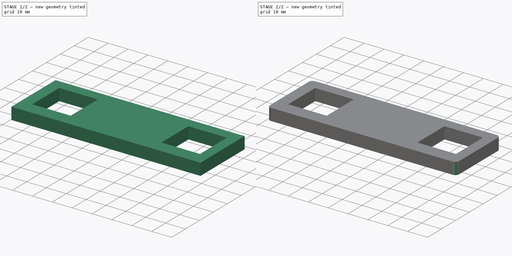
[diagram: build sequence overview — one tinted view per stage of 2, left to right]
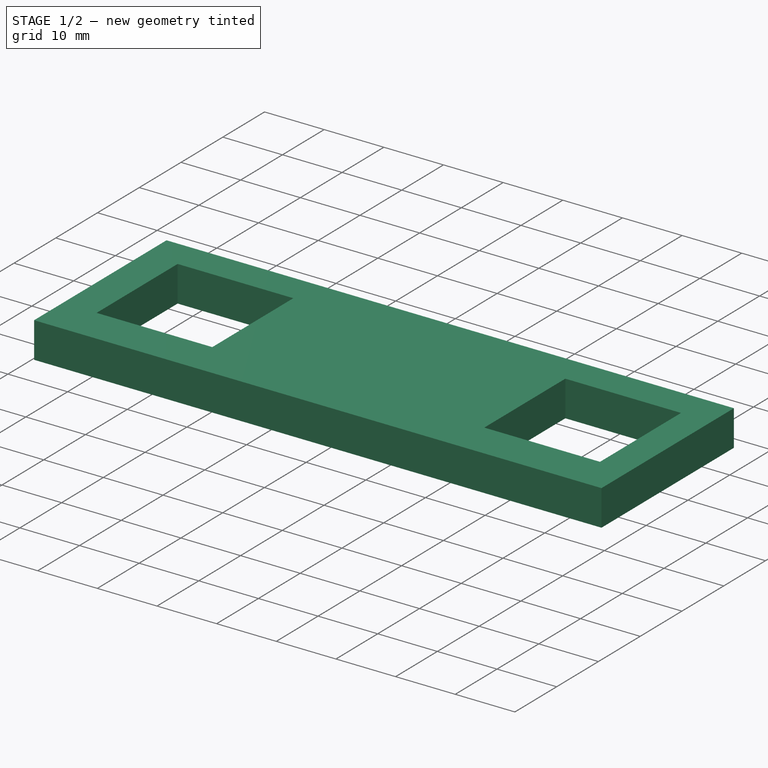
[diagram: stage 1 of 2 — iso view after this stage's code; geometry added in this stage tinted green]
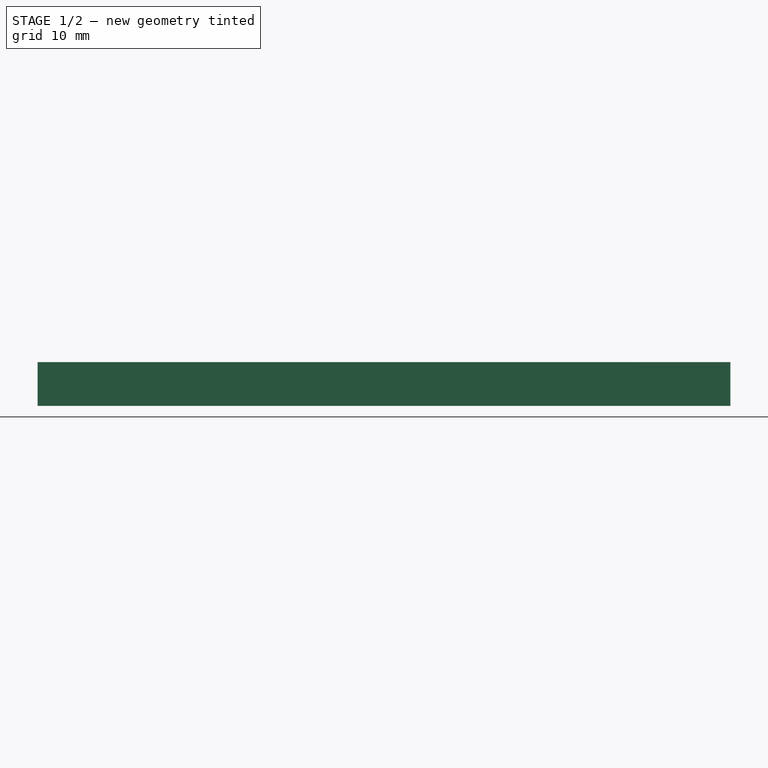
[diagram: stage 1 of 2 — front view after this stage's code; geometry added in this stage tinted green]
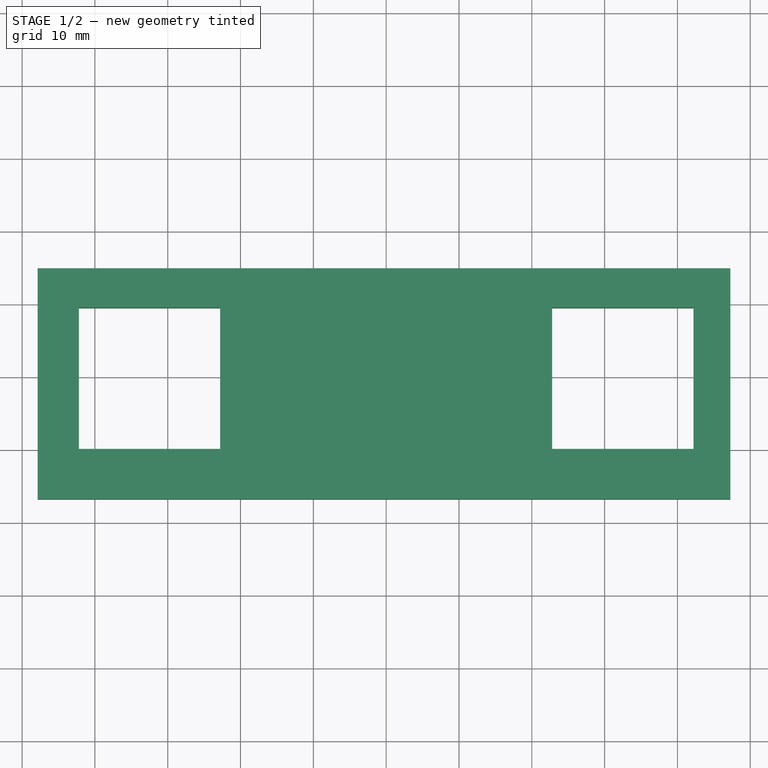
[diagram: stage 1 of 2 — top view after this stage's code; geometry added in this stage tinted green]
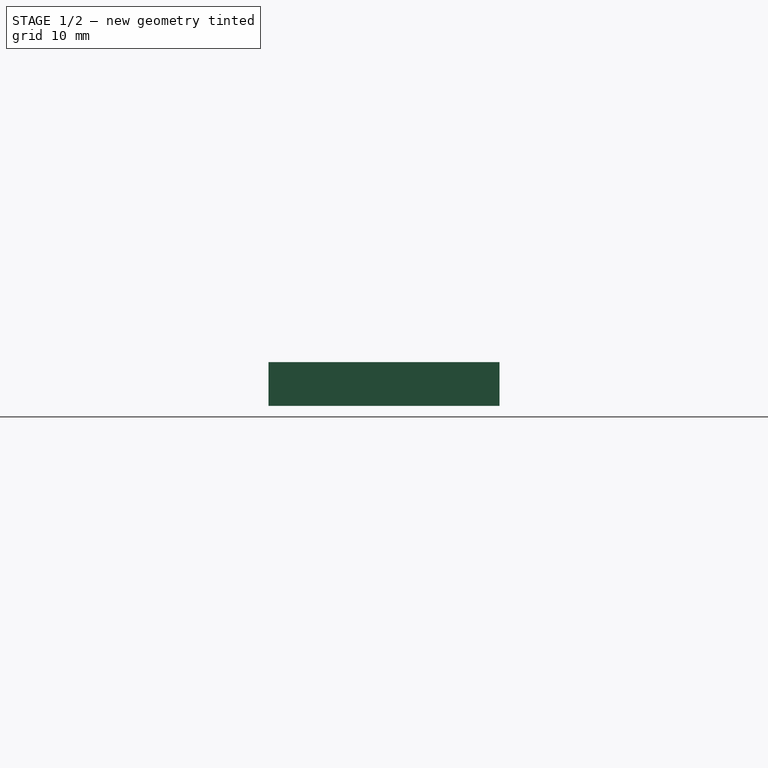
[diagram: stage 1 of 2 — right view after this stage's code; geometry added in this stage tinted green]
FCSTD DOCUMENT  (FreeCAD 0.19R24267 +99 (Git))
Label: 3d支架
License: All rights reserved
LicenseURL: http://en.wikipedia.org/wiki/All_rights_reserved
objects: Sketcher::SketchObject×1, PartDesign::Pad×1, PartDesign::Fillet×1, PartDesign::Body×1
note: 6 computed .brp shape members not serialized (recipe doc carries the construction recipe); baked Part::Feature solids carry a one-line shape summary decoded from their .brp

FEATURE [Sketcher::SketchObject] Sketch
  FullyConstrained = false
  MapMode = 5
  Support = -> [XY_Plane]
  sketch-geometry (14):
    g0: LineSegment StartX=-47.8605 StartY=14.9156 StartZ=0 EndX=47.266 EndY=14.9156 EndZ=0
    g1: LineSegment StartX=47.266 StartY=14.9156 StartZ=0 EndX=47.266 EndY=-16.7932 EndZ=0
    g2: LineSegment StartX=47.266 StartY=-16.7932 StartZ=0 EndX=-47.8605 EndY=-16.7932 EndZ=0
    g3: LineSegment StartX=-47.8605 StartY=-16.7932 StartZ=0 EndX=-47.8605 EndY=14.9156 EndZ=0
    g4: LineSegment StartX=-42.2 StartY=9.48964 StartZ=0 EndX=-22.8 EndY=9.48964 EndZ=0
    g5: LineSegment StartX=-22.8 StartY=9.48964 StartZ=0 EndX=-22.8 EndY=-9.91036 EndZ=0
    g6: LineSegment StartX=-22.8 StartY=-9.91036 StartZ=0 EndX=-42.2 EndY=-9.91036 EndZ=0
    g7: LineSegment StartX=-42.2 StartY=-9.91036 StartZ=0 EndX=-42.2 EndY=9.48964 EndZ=0
    g8: LineSegment StartX=22.8 StartY=9.48964 StartZ=0 EndX=42.2 EndY=9.48964 EndZ=0
    g9: LineSegment StartX=42.2 StartY=9.48964 StartZ=0 EndX=42.2 EndY=-9.91036 EndZ=0
    g10: LineSegment StartX=42.2 StartY=-9.91036 StartZ=0 EndX=22.8 EndY=-9.91036 EndZ=0
    g11: LineSegment StartX=22.8 StartY=-9.91036 StartZ=0 EndX=22.8 EndY=9.48964 EndZ=0
    g12: LineSegment StartX=-22.8 StartY=9.48964 StartZ=0 EndX=0 EndY=9.33898 EndZ=0
    g13: LineSegment StartX=22.8 StartY=9.48964 StartZ=0 EndX=0 EndY=9.33898 EndZ=0
  constraints (35):
    c: Coincident(g0,g1)
    c: Coincident(g1,g2)
    c: Coincident(g2,g3)
    c: Coincident(g3,g0)
    c: Horizontal(g0)
    c: Horizontal(g2)
    c: Vertical(g1)
    c: Vertical(g3)
    c: Coincident(g4,g5)
    c: Coincident(g5,g6)
    c: Coincident(g6,g7)
    c: Coincident(g7,g4)
    c: Horizontal(g4)
    c: Horizontal(g6)
    c: Vertical(g5)
    c: Vertical(g7)
    c: Equal(g4,g7)
    c: Distance(g4) = 19.4
    c: Coincident(g8,g9)
    c: Coincident(g9,g10)
    c: Coincident(g10,g11)
    c: Coincident(g11,g8)
    c: Horizontal(g8)
    c: Horizontal(g10)
    c: Vertical(g9)
    c: Vertical(g11)
    c: Equal(g8,g11)
    c: Equal(g4,g8) = 20
    c: Distance(g9,g5) = 65
    c: Horizontal(g5,g9)
    c: Coincident(g12,g4)
    c: PointOnObject(g12,g-2)
    c: Coincident(g13,g8)
    c: Coincident(g13,g12)
    c: Equal(g12,g13)
FEATURE [PartDesign::Pad] Pad
  Direction = (1,1,1)
  Length = 6
  Length2 = 100
  Profile = -> Sketch
  Type = 0
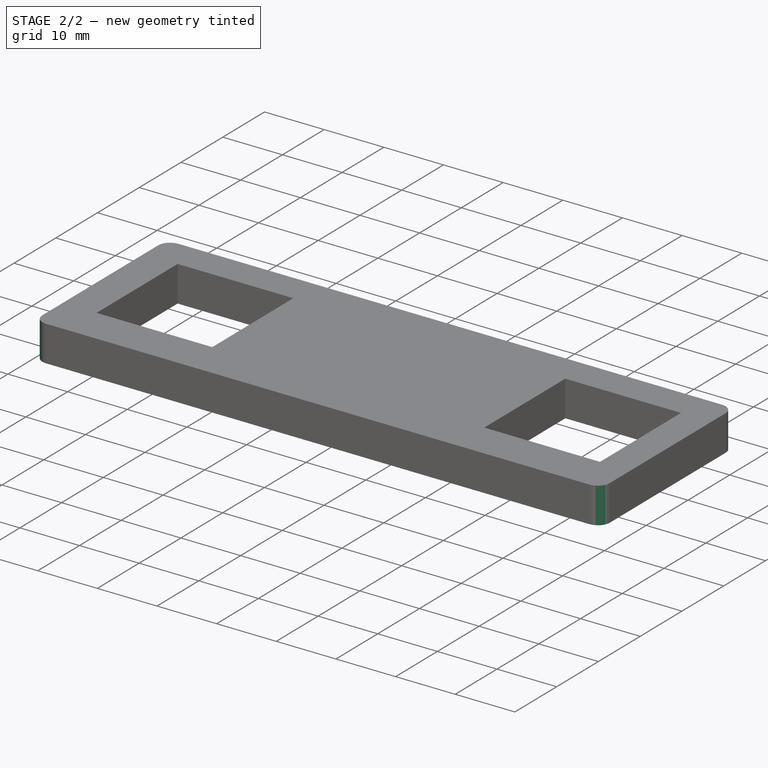
[diagram: stage 2 of 2 — iso view after this stage's code; geometry added in this stage tinted green]
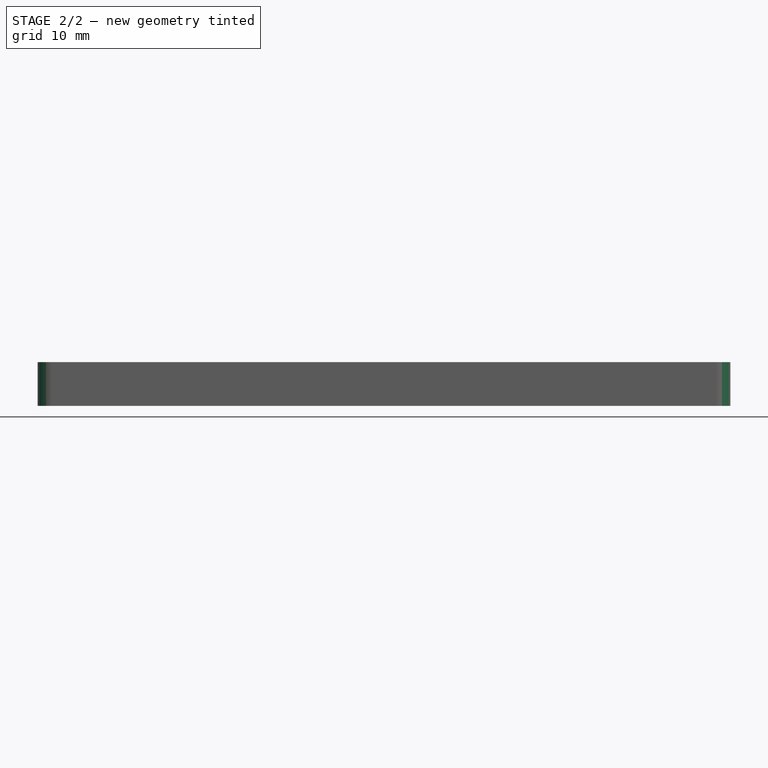
[diagram: stage 2 of 2 — front view after this stage's code; geometry added in this stage tinted green]
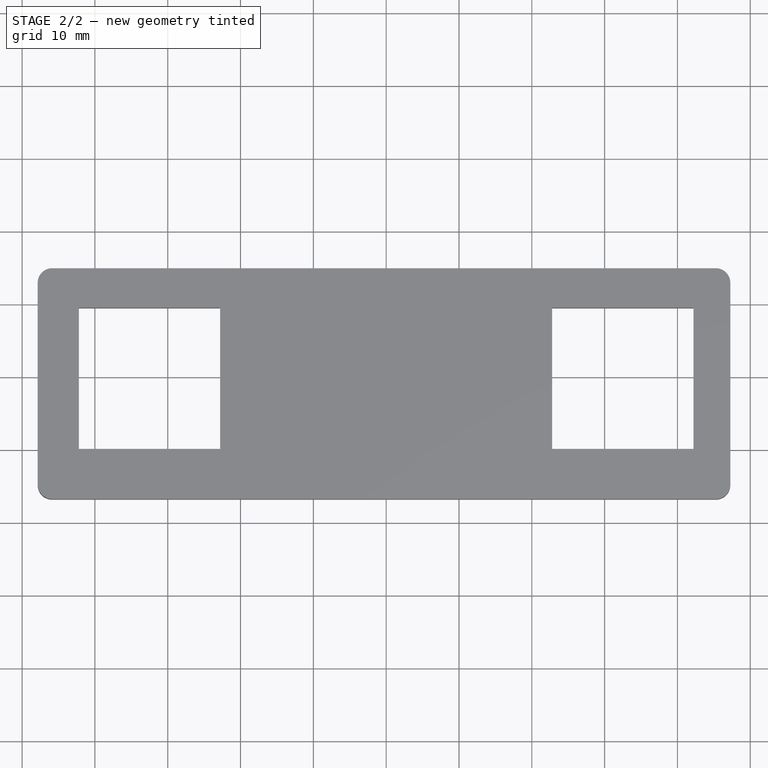
[diagram: stage 2 of 2 — top view after this stage's code; geometry added in this stage tinted green]
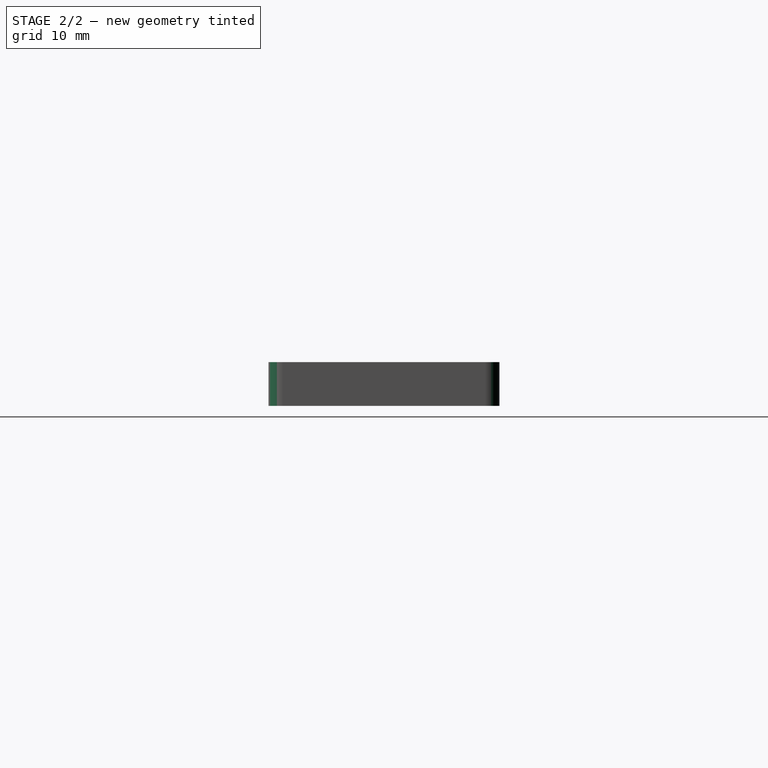
[diagram: stage 2 of 2 — right view after this stage's code; geometry added in this stage tinted green]
FEATURE [PartDesign::Fillet] Fillet
  Base = -> Pad [Edge2,Edge5,Edge1,Edge8]
  BaseFeature = -> Pad
  Radius = 2
  SupportTransform = false
FEATURE [PartDesign::Body] Body
  Group = -> [Sketch,Pad,Fillet]
  Origin = -> Origin
  Tip = -> Fillet
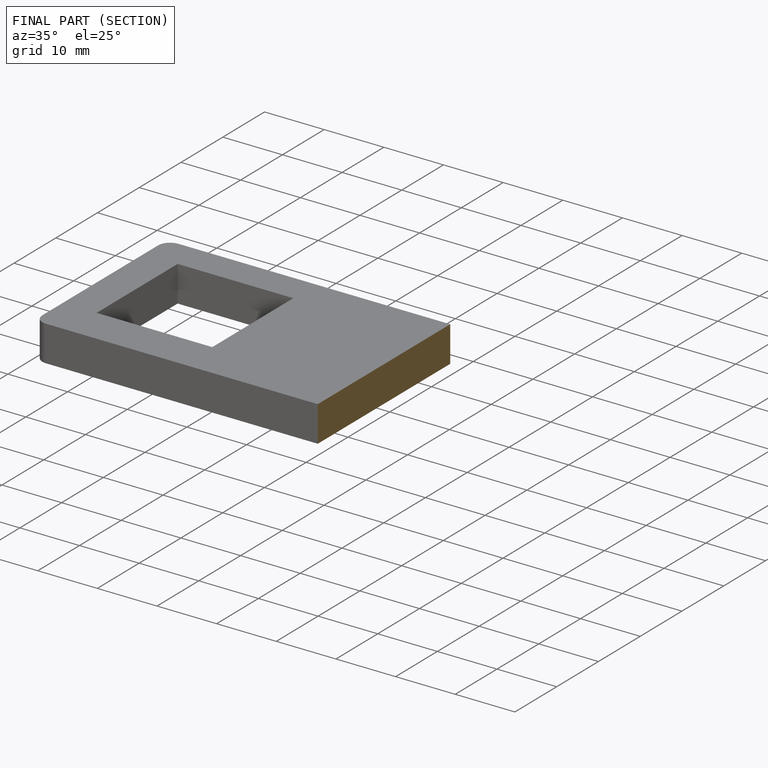
[diagram: finished part — half-section view (interior)]
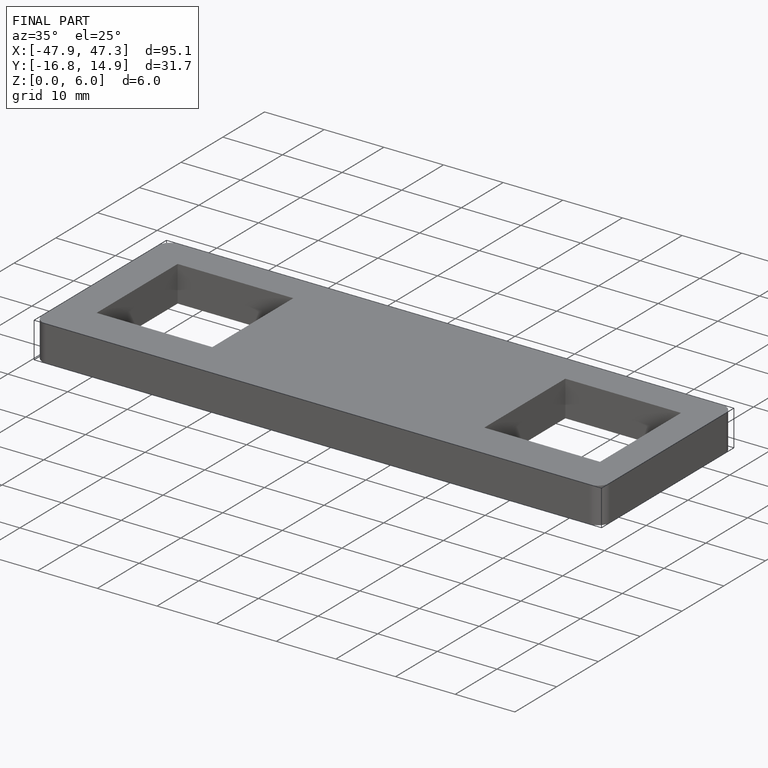
[diagram: finished part — iso view with bounding-box wireframe]
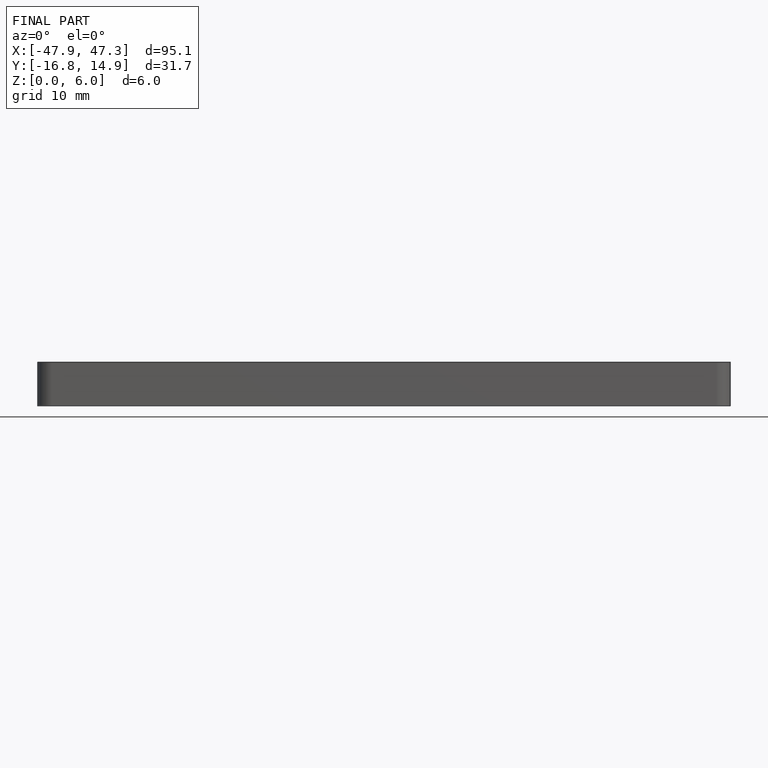
[diagram: finished part — front view with bounding-box wireframe]
